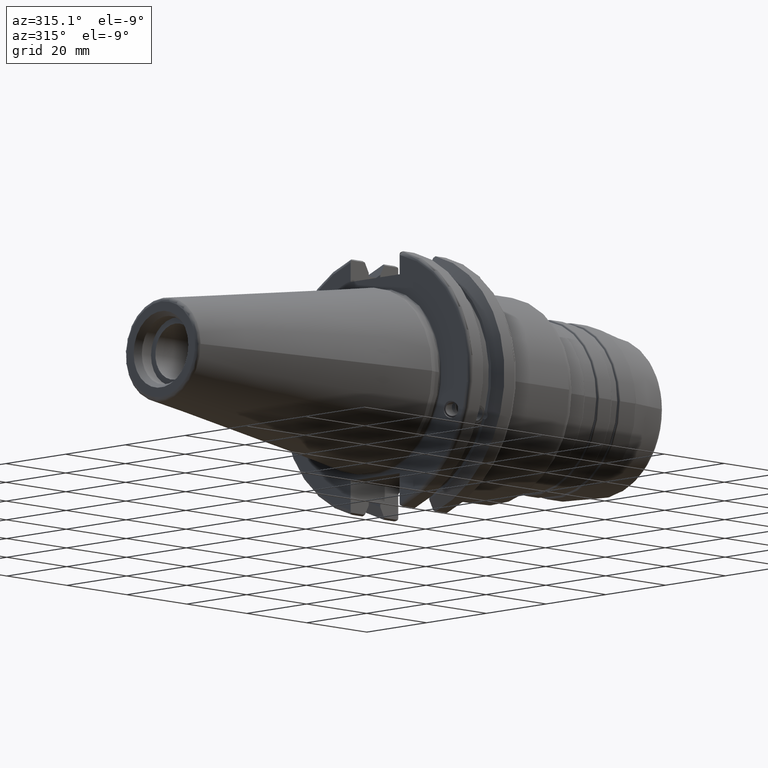
[diagram: clean part render]
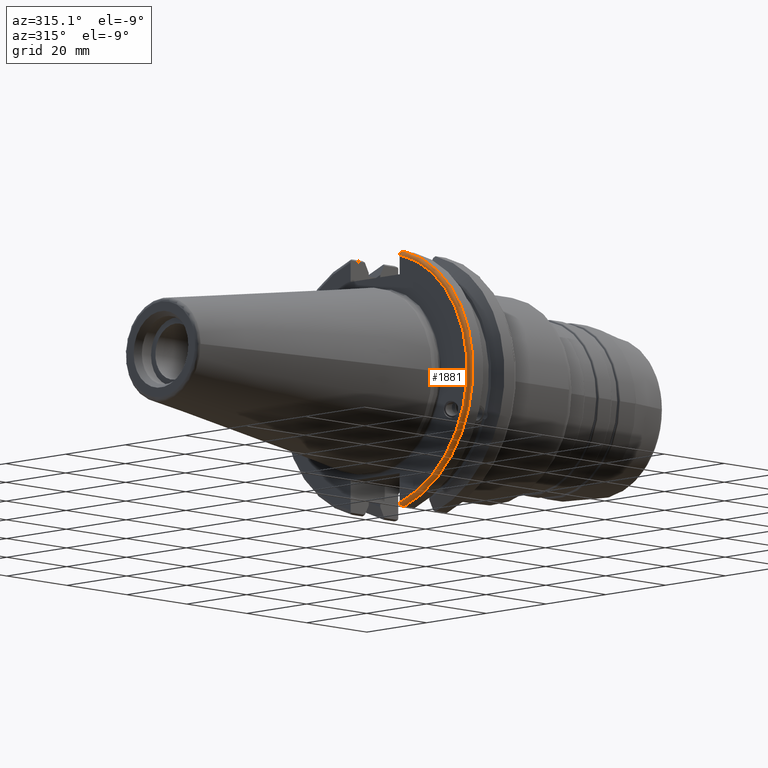
[diagram: same view with one face highlighted and labeled with its STEP entity id]
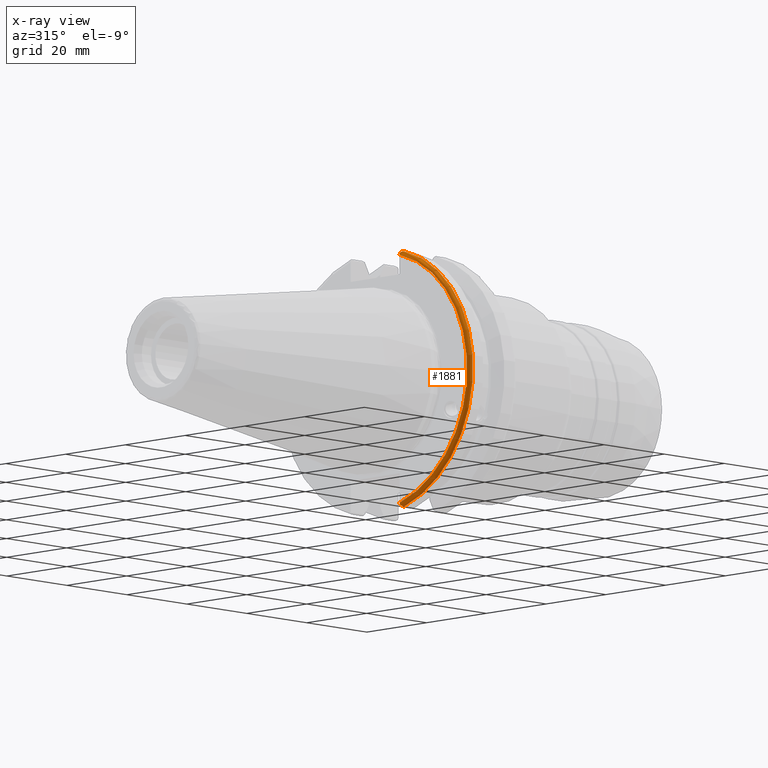
[diagram: x-ray of the same camera — body ghosted, the highlighted face saturated]
A machine part, auxiliary view. The second image highlights one B-rep face of the part: STEP entity #1881.
The next image is the same camera in x-ray: the body ghosted, the highlighted face saturated — about 0% of this face is hidden behind the body in this view.
In plain terms, the highlighted toroidal blend (fillet) surface has major radius 30.75 mm and minor (blend) radius 1 mm.
Its self-contained STEP definition (entity closure, byte-faithful):
#99=TOROIDAL_SURFACE('',#2136,30.75,1.);
#144=B_SPLINE_CURVE_WITH_KNOTS('',3,(#3554,#3555,#3556,#3557,#3558,#3559),
 .UNSPECIFIED.,.F.,.F.,(4,2,4),(0.0977210450333167,0.111963554372601,0.150804064902975),
 .UNSPECIFIED.);
#145=B_SPLINE_CURVE_WITH_KNOTS('',3,(#3580,#3581,#3582,#3583,#3584,#3585),
 .UNSPECIFIED.,.F.,.F.,(4,2,4),(0.452741154494498,0.491581665024872,0.505824174364157),
 .UNSPECIFIED.);
#146=B_SPLINE_CURVE_WITH_KNOTS('',3,(#3589,#3590,#3591,#3592,#3593,#3594,
#3595,#3596),.UNSPECIFIED.,.F.,.F.,(4,2,2,4),(-0.104180282751877,-0.0729784742461442,
-0.0343524753874977,0.),.UNSPECIFIED.);
#147=B_SPLINE_CURVE_WITH_KNOTS('',3,(#3599,#3600,#3601,#3602,#3603,#3604,
#3605,#3606),.UNSPECIFIED.,.F.,.F.,(4,2,2,4),(0.,0.0343524753874981,0.0729784742461436,
0.104180282751876),.UNSPECIFIED.);
#242=FACE_OUTER_BOUND('',#360,.T.);
#360=EDGE_LOOP('',(#1618,#1619,#1620,#1621,#1622,#1623));
#687=CIRCLE('',#2124,30.75);
#692=CIRCLE('',#2137,31.75);
#854=VERTEX_POINT('',#3436);
#855=VERTEX_POINT('',#3437);
#877=VERTEX_POINT('',#3553);
#883=VERTEX_POINT('',#3578);
#884=VERTEX_POINT('',#3588);
#885=VERTEX_POINT('',#3597);
#1105=EDGE_CURVE('',#854,#855,#687,.T.);
#1136=EDGE_CURVE('',#877,#854,#144,.T.);
#1146=EDGE_CURVE('',#855,#883,#145,.T.);
#1148=EDGE_CURVE('',#883,#884,#146,.T.);
#1149=EDGE_CURVE('',#884,#885,#692,.T.);
#1150=EDGE_CURVE('',#885,#877,#147,.T.);
#1618=ORIENTED_EDGE('',*,*,#1148,.T.);
#1619=ORIENTED_EDGE('',*,*,#1149,.T.);
#1620=ORIENTED_EDGE('',*,*,#1150,.T.);
#1621=ORIENTED_EDGE('',*,*,#1136,.T.);
#1622=ORIENTED_EDGE('',*,*,#1105,.T.);
#1623=ORIENTED_EDGE('',*,*,#1146,.T.);
#1881=ADVANCED_FACE('',(#242),#99,.T.);
#2124=AXIS2_PLACEMENT_3D('',#3438,#2620,#2621);
#2136=AXIS2_PLACEMENT_3D('',#3587,#2667,#2668);
#2137=AXIS2_PLACEMENT_3D('',#3598,#2669,#2670);
#2620=DIRECTION('center_axis',(1.,0.,0.));
#2621=DIRECTION('ref_axis',(0.,-1.,1.60812264967664E-16));
#2667=DIRECTION('center_axis',(1.,0.,0.));
#2668=DIRECTION('ref_axis',(0.,0.,-1.));
#2669=DIRECTION('center_axis',(-1.,0.,0.));
#2670=DIRECTION('ref_axis',(0.,-1.,1.60812264967664E-16));
#3436=CARTESIAN_POINT('',(3.175,-8.18999999999999,29.6392712461019));
#3437=CARTESIAN_POINT('',(3.175,-8.19,-29.6392712461019));
#3438=CARTESIAN_POINT('Origin',(3.175,0.,0.));
#3553=CARTESIAN_POINT('',(3.31912772509028,-8.19,30.1755016258903));
#3554=CARTESIAN_POINT('Ctrl Pts',(3.31912772509028,-8.19,30.1755016258903));
#3555=CARTESIAN_POINT('Ctrl Pts',(3.29318362718666,-8.19,30.131014531546));
#3556=CARTESIAN_POINT('Ctrl Pts',(3.27103565282437,-8.19,30.0852355256475));
#3557=CARTESIAN_POINT('Ctrl Pts',(3.20451443291695,-8.19,29.9212724384851));
#3558=CARTESIAN_POINT('Ctrl Pts',(3.175,-8.19,29.7687396145364));
#3559=CARTESIAN_POINT('Ctrl Pts',(3.175,-8.19,29.6392712461019));
#3578=CARTESIAN_POINT('',(3.31912772509028,-8.19,-30.1755016258903));
#3580=CARTESIAN_POINT('Ctrl Pts',(3.175,-8.19,-29.6392712461018));
#3581=CARTESIAN_POINT('Ctrl Pts',(3.175,-8.19,-29.7687396145364));
#3582=CARTESIAN_POINT('Ctrl Pts',(3.20451443291695,-8.19,-29.9212724384851));
#3583=CARTESIAN_POINT('Ctrl Pts',(3.27103565282437,-8.19,-30.0852355256475));
#3584=CARTESIAN_POINT('Ctrl Pts',(3.29318362718666,-8.19,-30.131014531546));
#3585=CARTESIAN_POINT('Ctrl Pts',(3.31912772509028,-8.19,-30.1755016258903));
#3587=CARTESIAN_POINT('Origin',(4.175,0.,0.));
#3588=CARTESIAN_POINT('',(4.175,-8.67204822802685,-30.5427254764662));
#3589=CARTESIAN_POINT('Ctrl Pts',(3.31912772509028,-8.19,-30.1755016258903));
#3590=CARTESIAN_POINT('Ctrl Pts',(3.36755369570113,-8.27036828330781,-30.2367261024977));
#3591=CARTESIAN_POINT('Ctrl Pts',(3.43232973376814,-8.34909446036477,-30.2966996242308));
#3592=CARTESIAN_POINT('Ctrl Pts',(3.58532758094931,-8.48862804755884,-30.4029961692546));
#3593=CARTESIAN_POINT('Ctrl Pts',(3.70655857052286,-8.56482138642532,-30.4610401774263));
#3594=CARTESIAN_POINT('Ctrl Pts',(3.92668295662254,-8.6471881193939,-30.5237870709558));
#3595=CARTESIAN_POINT('Ctrl Pts',(4.06049174870834,-8.67204822802686,-30.5427254764662));
#3596=CARTESIAN_POINT('Ctrl Pts',(4.175,-8.67204822802686,-30.5427254764662));
#3597=CARTESIAN_POINT('',(4.175,-8.67204822802685,30.5427254764662));
#3598=CARTESIAN_POINT('Origin',(4.175,0.,0.));
#3599=CARTESIAN_POINT('Ctrl Pts',(4.175,-8.67204822802686,30.5427254764662));
#3600=CARTESIAN_POINT('Ctrl Pts',(4.06049174870834,-8.67204822802686,30.5427254764662));
#3601=CARTESIAN_POINT('Ctrl Pts',(3.92668295662254,-8.64718811939389,30.5237870709558));
#3602=CARTESIAN_POINT('Ctrl Pts',(3.70655857052286,-8.56482138642532,30.4610401774263));
#3603=CARTESIAN_POINT('Ctrl Pts',(3.58532758094931,-8.48862804755884,30.4029961692546));
#3604=CARTESIAN_POINT('Ctrl Pts',(3.43232973376814,-8.34909446036478,30.2966996242308));
#3605=CARTESIAN_POINT('Ctrl Pts',(3.36755369570113,-8.2703682833078,30.2367261024977));
#3606=CARTESIAN_POINT('Ctrl Pts',(3.31912772509028,-8.19,30.1755016258903));